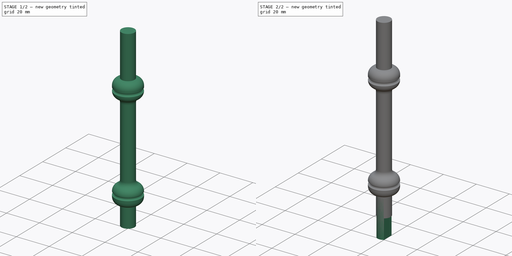
[diagram: build sequence overview — one tinted view per stage of 2, left to right]
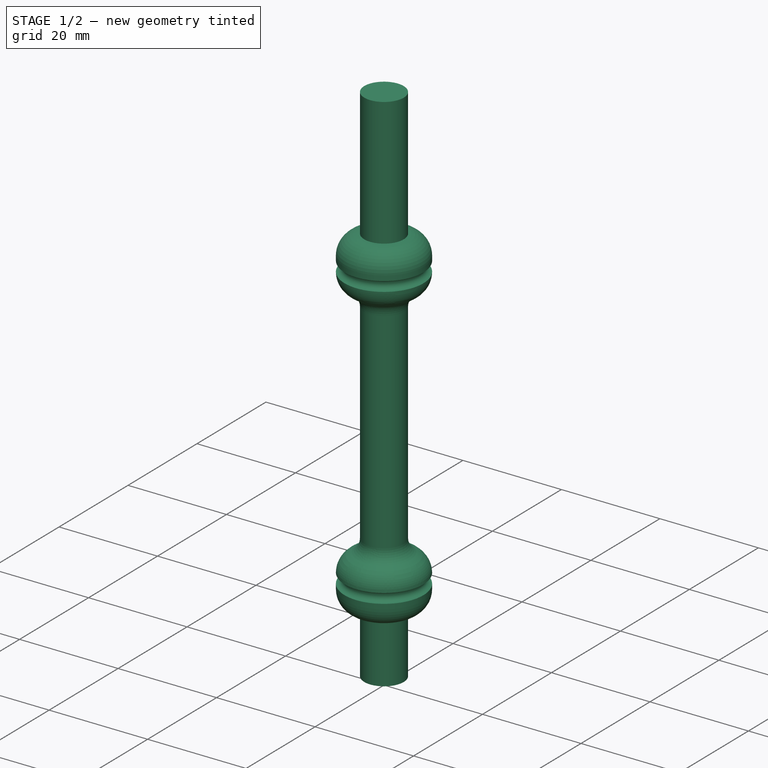
[diagram: stage 1 of 2 — iso view after this stage's code; geometry added in this stage tinted green]
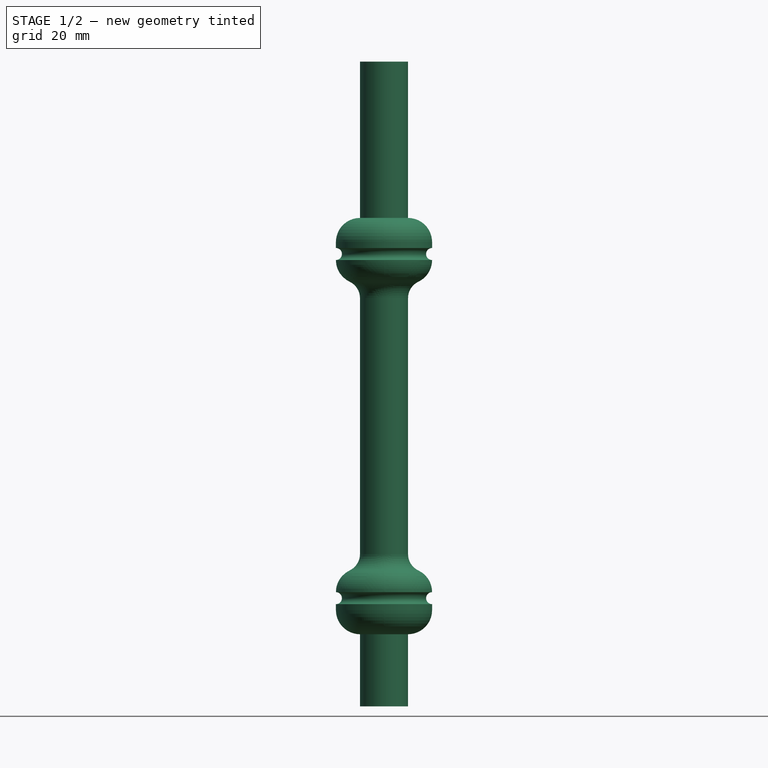
[diagram: stage 1 of 2 — front view after this stage's code; geometry added in this stage tinted green]
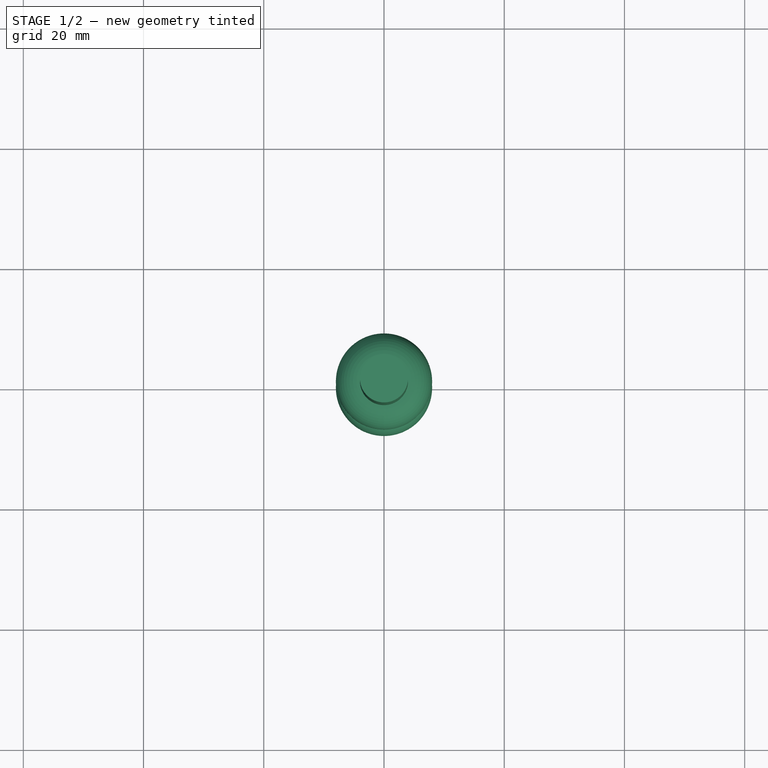
[diagram: stage 1 of 2 — top view after this stage's code; geometry added in this stage tinted green]
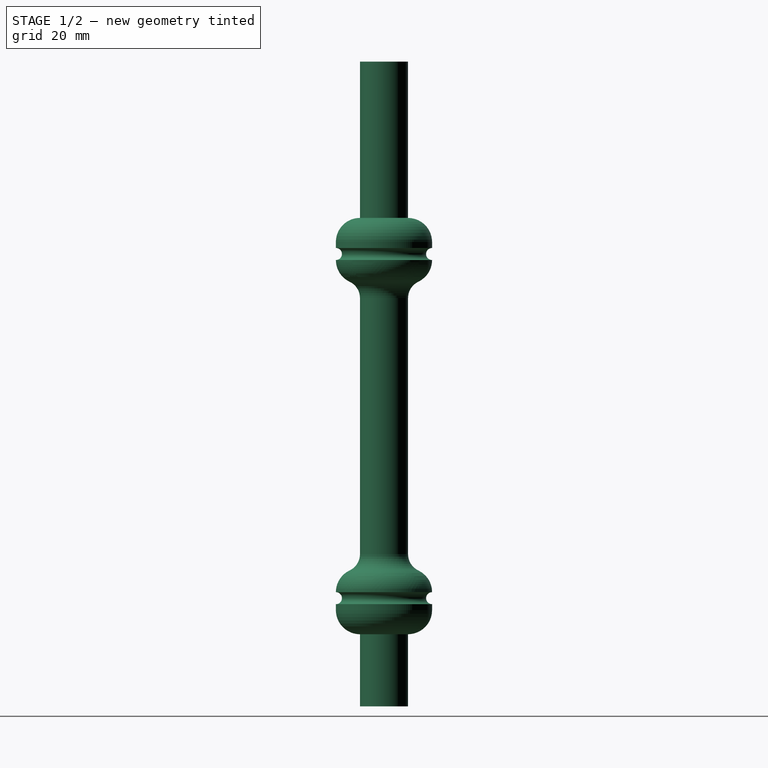
[diagram: stage 1 of 2 — right view after this stage's code; geometry added in this stage tinted green]
FCSTD DOCUMENT  (FreeCAD 0.19R22670 (Git))
Label: roller4big2n
License: All rights reserved
LicenseURL: http://en.wikipedia.org/wiki/All_rights_reserved
objects: Sketcher::SketchObject×3, PartDesign::Revolution×1, PartDesign::Fillet×1, PartDesign::Pad×1, PartDesign::Pocket×1, PartDesign::Body×1
note: 12 computed .brp shape members not serialized (recipe doc carries the construction recipe); baked Part::Feature solids carry a one-line shape summary decoded from their .brp

FEATURE [Sketcher::SketchObject] Sketch
  MapMode = 5
  Placement = pos=(0,0,0) rot=(0.57735,0.57735,0.57735;2.0944rad)
  Support = -> [YZ_Plane]
  sketch-geometry (14):
    g0: LineSegment StartX=0 StartY=0 StartZ=0 EndX=-4 EndY=0 EndZ=0
    g1: LineSegment StartX=-4 StartY=0 StartZ=0 EndX=-4 EndY=12 EndZ=0
    g2: ArcOfCircle CenterX=-8 CenterY=18 CenterZ=0 NormalX=0 NormalY=0 NormalZ=1 AngleXU=0 Radius=1 StartAngle=4.71239 EndAngle=7.85398
    g3: ArcOfCircle CenterX=-4 CenterY=19 CenterZ=0 NormalX=0 NormalY=0 NormalZ=1 AngleXU=0 Radius=4 StartAngle=1.5708 EndAngle=3.14159
    g4: LineSegment StartX=-4 StartY=23 StartZ=0 EndX=-4 EndY=70.25 EndZ=0
    g5: LineSegment StartX=0 StartY=107.25 StartZ=0 EndX=-4 EndY=107.25 EndZ=0
    g6: LineSegment StartX=-4 StartY=107.25 StartZ=0 EndX=-4 EndY=81.25 EndZ=0
    g7: ArcOfCircle CenterX=-8 CenterY=75.25 CenterZ=0 NormalX=0 NormalY=0 NormalZ=1 AngleXU=0 Radius=1 StartAngle=4.71239 EndAngle=7.85398
    g8: ArcOfCircle CenterX=-4 CenterY=74.25 CenterZ=0 NormalX=0 NormalY=0 NormalZ=1 AngleXU=0 Radius=4 StartAngle=3.14159 EndAngle=4.71239
    g9: LineSegment StartX=0 StartY=0 StartZ=0 EndX=0 EndY=107.25 EndZ=0
    g10: LineSegment StartX=-8 StartY=76.25 StartZ=0 EndX=-8 EndY=77.25 EndZ=0
    g11: ArcOfCircle CenterX=-4 CenterY=77.25 CenterZ=0 NormalX=0 NormalY=0 NormalZ=1 AngleXU=0 Radius=4 StartAngle=1.5708 EndAngle=3.14159
    g12: LineSegment StartX=-8 StartY=17 StartZ=0 EndX=-8 EndY=16 EndZ=0
    g13: ArcOfCircle CenterX=-4 CenterY=16 CenterZ=0 NormalX=0 NormalY=0 NormalZ=1 AngleXU=0 Radius=4 StartAngle=3.14159 EndAngle=4.71239
  constraints (44):
    c: Coincident(g0,g1)
    c: Perpendicular(g2,g3) = 1.5708
    c: Angle(g3) = 1.5708
    c: DistanceX(g0,g0) = 4
    c: DistanceY(g1,g1) = 12
    c: Coincident(g0,g-1)
    c: Perpendicular(g1,g0)
    c: Radius(g3) = 4
    c: Radius(g2) = 1
    c: DistanceY(g4,g4) = 47.25
    c: Vertical(g4,g3)
    c: Coincident(g4,g3)
    c: Coincident(g5,g6)
    c: Perpendicular(g7,g8) = 4.71239
    c: Angle(g8) = 1.5708
    c: DistanceX(g5,g5) = 4
    c: Perpendicular(g-2,g5)
    c: Vertical(g8,g8)
    c: Radius(g7) = 1
    c: Radius(g8) = 4
    c: Coincident(g8,g4)
    c: DistanceY(g6,g6) = 26
    c: Vertical(g7,g7)
    c: Vertical(g1)
    c: Coincident(g9,g5)
    c: Coincident(g9,g0)
    c: Tangent(g10,g11) = 1.5708
    c: Vertical(g10)
    c: DistanceY(g10,g10) = 1
    c: Radius(g11) = 4
    c: Coincident(g10,g7)
    c: Coincident(g11,g6)
    c: Vertical(g6,g4)
    c: PointOnObject(g5,g-2)
    c: Vertical(g12)
    c: Radius(g13) = 4
    c: Coincident(g13,g12)
    c: Coincident(g12,g2)
    c: Vertical(g2,g2)
    c: Coincident(g13,g1)
    c: Vertical(g1,g3)
    c: Angle(g2) = 3.14159
    c: DistanceY(g12,g12) = 1
    c: Angle(g13) = 1.5708
FEATURE [PartDesign::Revolution] Revolution
  Angle = 360
  Axis = (-2e-16,3e-16,1)
  Base = (0,0,0)
  Placement = pos=(0,0,0) rot=(0.57735,0.57735,0.57735;2.0944rad)
  Profile = -> Sketch
  ReferenceAxis = -> Sketch [V_Axis]
FEATURE [PartDesign::Fillet] Fillet
  Base = -> Revolution [Face7]
  BaseFeature = -> Revolution
  Placement = pos=(0,0,0) rot=(0.57735,0.57735,0.57735;2.0944rad)
  Radius = 3
  Refine = true
  SupportTransform = true
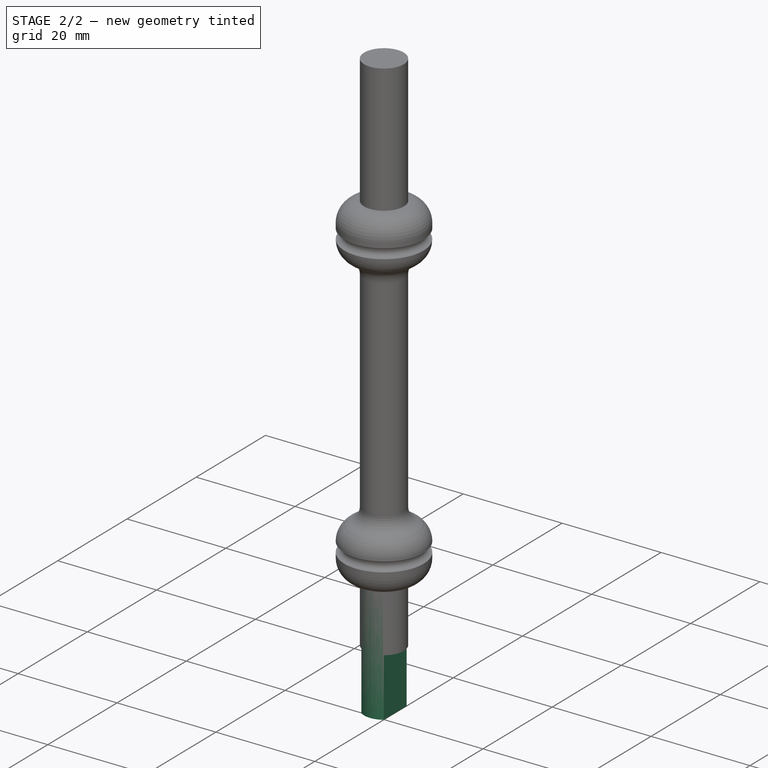
[diagram: stage 2 of 2 — iso view after this stage's code; geometry added in this stage tinted green]
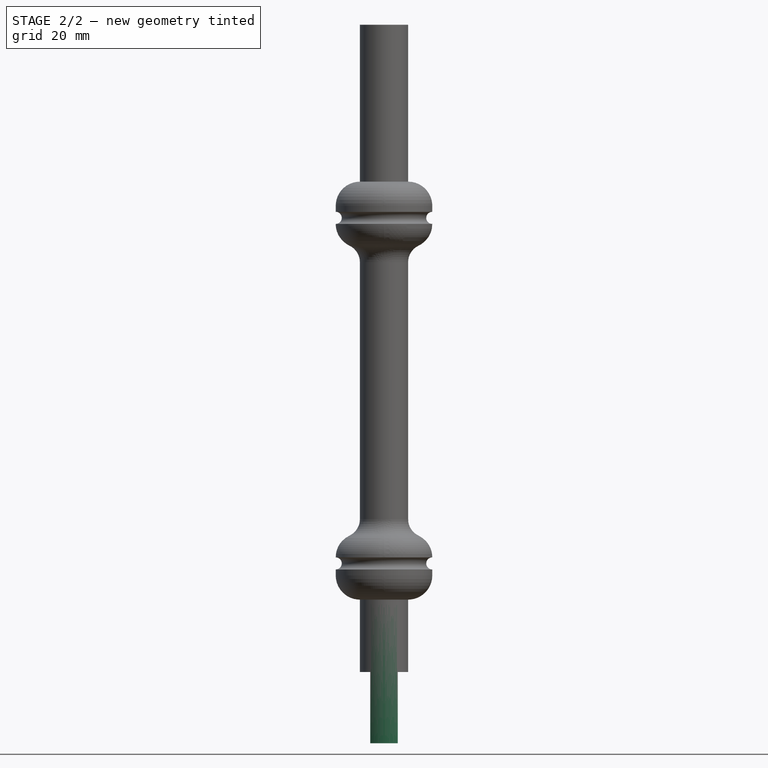
[diagram: stage 2 of 2 — front view after this stage's code; geometry added in this stage tinted green]
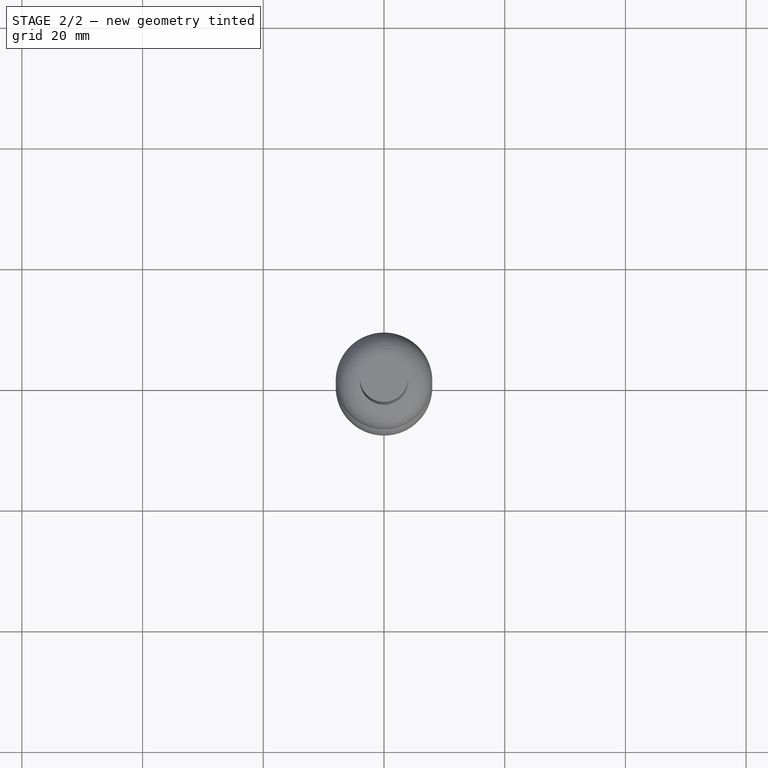
[diagram: stage 2 of 2 — top view after this stage's code; geometry added in this stage tinted green]
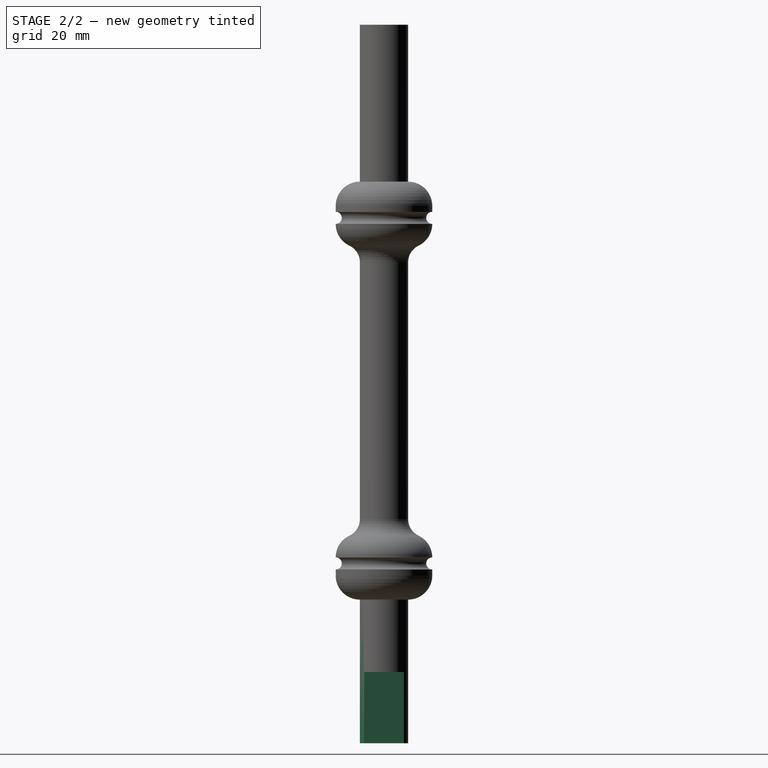
[diagram: stage 2 of 2 — right view after this stage's code; geometry added in this stage tinted green]
FEATURE [Sketcher::SketchObject] Sketch001
  MapMode = 5
  Support = -> [XY_Plane]
  sketch-geometry (8):
    g0: ArcOfCircle CenterX=6e-16 CenterY=0 CenterZ=0 NormalX=0 NormalY=0 NormalZ=1 AngleXU=0 Radius=4 StartAngle=0.965811 EndAngle=2.17578
    g1: GeomPoint X=-2.275 Y=3.29004 Z=0
    g2: GeomPoint X=2.275 Y=3.29004 Z=0
    g3: GeomPoint X=2.275 Y=-3.29004 Z=0
    g4: GeomPoint X=-2.275 Y=-3.29004 Z=0
    g5: LineSegment StartX=2.275 StartY=3.29004 StartZ=0 EndX=2.275 EndY=-3.29004 EndZ=0
    g6: LineSegment StartX=-2.275 StartY=3.29004 StartZ=0 EndX=-2.275 EndY=-3.29004 EndZ=0
    g7: ArcOfCircle CenterX=6e-16 CenterY=0 CenterZ=0 NormalX=0 NormalY=0 NormalZ=1 AngleXU=0 Radius=4 StartAngle=4.1074 EndAngle=5.31737
  constraints (19):
    c: PointOnObject(g0,g-1)
    c: Radius(g0) = 4
    c: PointOnObject(g1,g0)
    c: PointOnObject(g2,g0)
    c: PointOnObject(g3,g0)
    c: DistanceX(g1,g2) = 4.55
    c: Vertical(g2,g3)
    c: Symmetric(g2,g1,g-2)
    c: Vertical(g5)
    c: Coincident(g6,g1)
    c: Coincident(g6,g4)
    c: Vertical(g6)
    c: Coincident(g0,g5)
    c: Coincident(g7,g5)
    c: Equal(g0,g7)
    c: PointOnObject(g0,g6)
    c: PointOnObject(g7,g6)
    c: Coincident(g0,g7)
    c: Symmetric(g4,g0,g0)
FEATURE [PartDesign::Pad] Pad
  BaseFeature = -> Fillet
  Direction = (1,1,1)
  Length = 11.8
  Length2 = 100
  Placement = pos=(0,0,0) rot=(0.57735,0.57735,0.57735;2.0944rad)
  Profile = -> Sketch001
  Refine = true
  Reversed = true
  Type = 0
FEATURE [Sketcher::SketchObject] Sketch002
  AttachmentOffset = pos=(0,0,-11.8) rot=(0,0,1;0rad)
  MapMode = 5
  Placement = pos=(0,0,-11.8) rot=(0,0,1;0rad)
  Support = -> [XY_Plane]
  sketch-geometry (1):
    g0: Circle CenterX=0 CenterY=0 CenterZ=0 NormalX=0 NormalY=0 NormalZ=1 AngleXU=0 Radius=1.50937
  constraints (1):
    c: Coincident(g0,g-1)
FEATURE [PartDesign::Pocket] Pocket
  BaseFeature = -> Pad
  Length = 1
  Length2 = 100
  Placement = pos=(0,0,0) rot=(0.57735,0.57735,0.57735;2.0944rad)
  Profile = -> Sketch002
  Refine = true
  Reversed = true
  Type = 0
FEATURE [PartDesign::Body] Body
  Group = -> [Sketch,Revolution,Fillet,Sketch001,Pad,Sketch002,Pocket]
  Origin = -> Origin
  Tip = -> Pocket
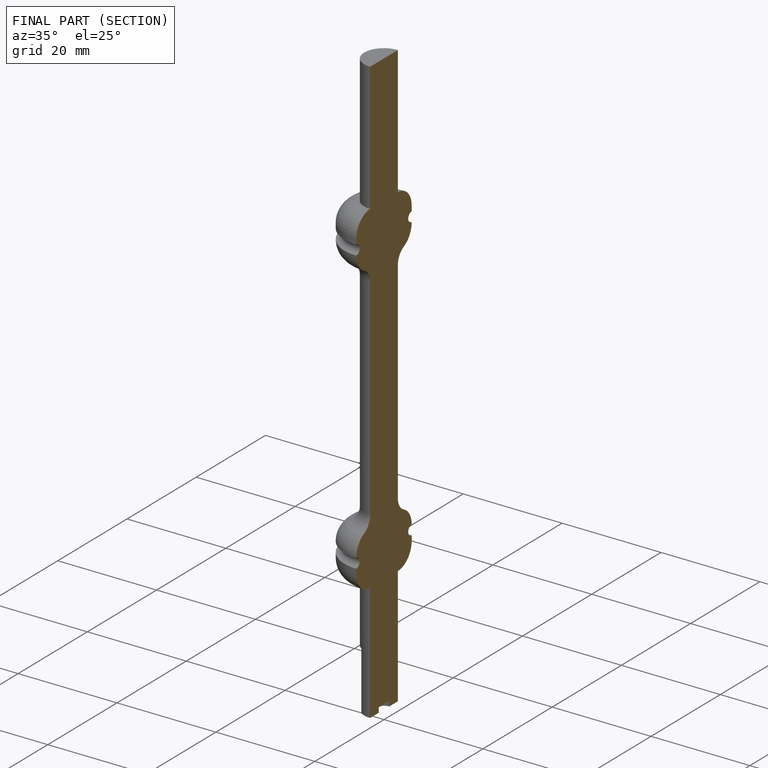
[diagram: finished part — half-section view (interior)]
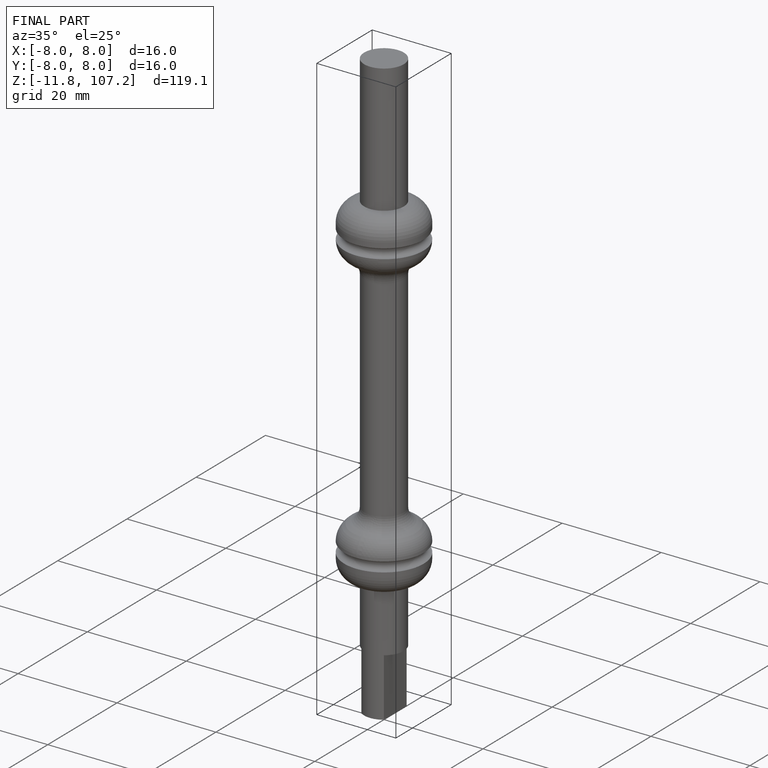
[diagram: finished part — iso view with bounding-box wireframe]
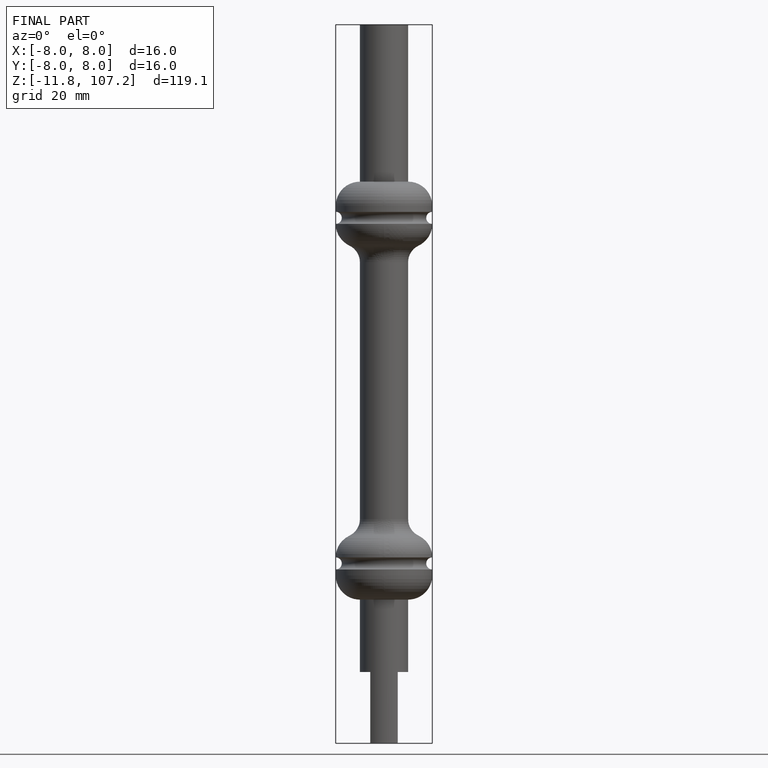
[diagram: finished part — front view with bounding-box wireframe]
